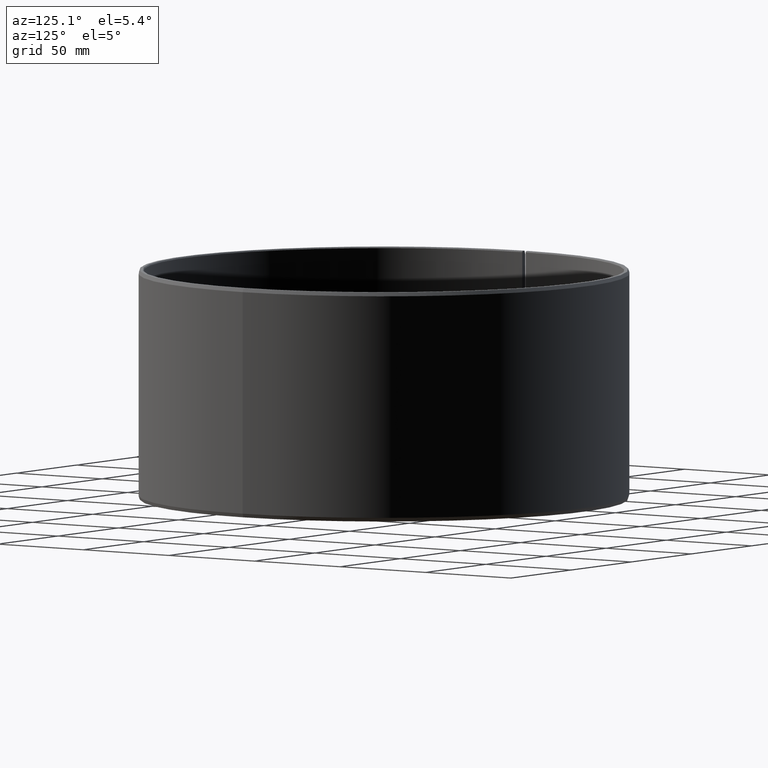
[diagram: clean part render]
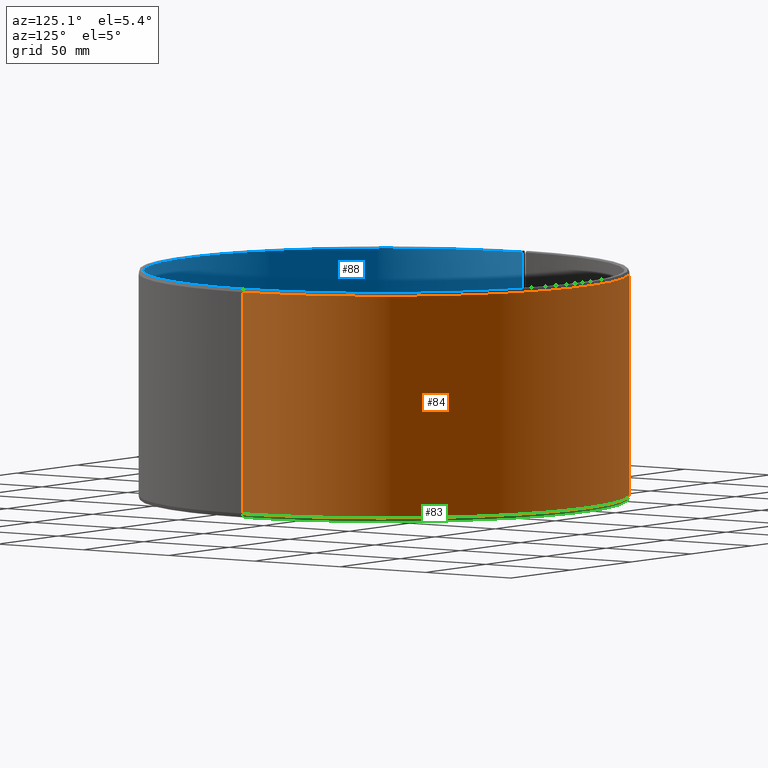
[diagram: same view with three faces highlighted in distinct colors, each labeled with its STEP entity id]
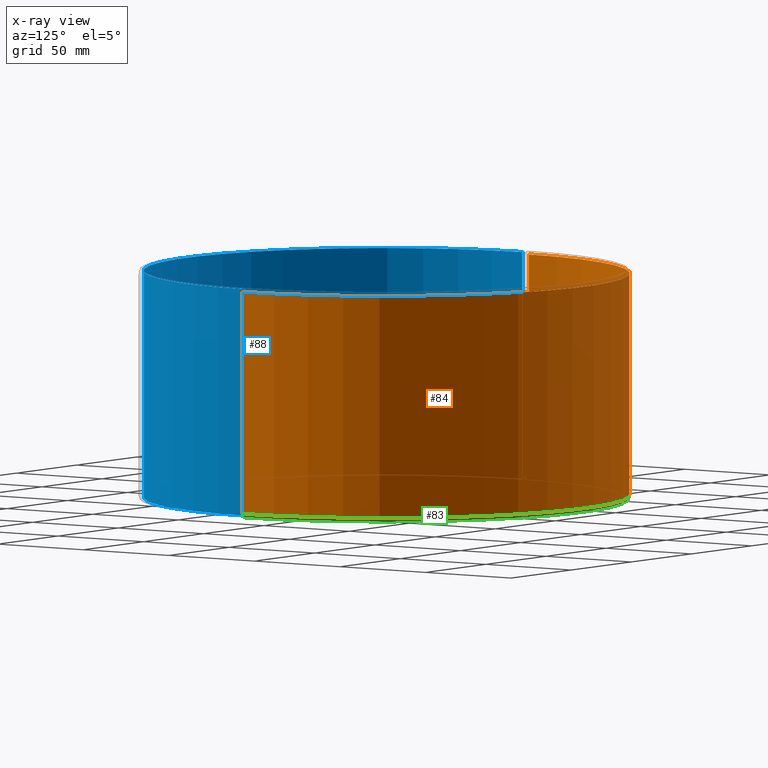
[diagram: x-ray of the same camera — body ghosted, the three highlighted faces saturated]
A machine part, auxiliary view with three faces highlighted in distinct colors.
The next image is the same camera in x-ray (body ghosted, the three faces saturated) — at least one of them is partly hidden behind the body in this view.
Their STEP definitions:

[orange] entity #84 — the highlighted cylindrical surface (partial cylindrical patch) has radius 117.5 mm, axis along (0, -0, 1).
#84=ADVANCED_FACE('',(#110),#111,.T.);
#110=FACE_OUTER_BOUND('',#142,.T.);
#111=CYLINDRICAL_SURFACE('',#143,117.5);
#142=EDGE_LOOP('',(#221,#222,#223,#224));
#143=AXIS2_PLACEMENT_3D('',#225,#226,#227);
#221=ORIENTED_EDGE('',*,*,#291,.T.);
#222=ORIENTED_EDGE('',*,*,#307,.T.);
#223=ORIENTED_EDGE('',*,*,#308,.T.);
#224=ORIENTED_EDGE('',*,*,#309,.F.);
#225=CARTESIAN_POINT('',(3.05322034464632E-014,-3.53787331373911E-014,55.0));
#226=DIRECTION('',(5.48707263966375E-016,-6.09939603923743E-016,1.0));
#227=DIRECTION('',(-1.0,1.89882151931499E-015,5.48707263966376E-016));
#291=EDGE_CURVE('',#332,#339,#340,.T.);
#307=EDGE_CURVE('',#339,#363,#365,.T.);
#308=EDGE_CURVE('',#363,#366,#367,.T.);
#309=EDGE_CURVE('',#332,#366,#368,.T.);
#332=VERTEX_POINT('',#398);
#339=VERTEX_POINT('',#407);
#340=LINE('',#408,#409);
#363=VERTEX_POINT('',#440);
#365=CIRCLE('',#443,117.5);
#366=VERTEX_POINT('',#444);
#367=LINE('',#445,#446);
#368=CIRCLE('',#447,117.5);
#398=CARTESIAN_POINT('',(117.5,-3.05328648475626E-013,108.2));
#407=CARTESIAN_POINT('',(117.5,-2.39302852111333E-013,1.79999999999993));
#408=CARTESIAN_POINT('',(117.5,-2.72879861546883E-013,54.9999999999999));
#409=VECTOR('',#485,1.0);
#440=CARTESIAN_POINT('',(-117.482104180876,2.05065775638105,1.80000000000006));
#443=AXIS2_PLACEMENT_3D('',#513,#514,#515);
#444=CARTESIAN_POINT('',(-117.482104180876,2.05065775638098,108.2));
#445=CARTESIAN_POINT('',(-117.482104180876,2.05065775638104,1.80000000000006));
#446=VECTOR('',#516,10.0);
#447=AXIS2_PLACEMENT_3D('',#517,#518,#519);
#485=DIRECTION('',(-5.48707263966375E-016,6.09939603923743E-016,-1.0));
#513=CARTESIAN_POINT('',(1.34097700345211E-015,-1.74661459587933E-015,1.8));
#514=DIRECTION('',(5.48707263966375E-016,-6.09939603923743E-016,1.0));
#515=DIRECTION('',(-1.0,1.89882151931499E-015,5.48707263966376E-016));
#516=DIRECTION('',(7.15608683843326E-016,-6.14227309958438E-016,1.0));
#517=CARTESIAN_POINT('',(5.97234298894743E-014,-6.67904056296526E-014,108.2));
#518=DIRECTION('',(5.48707263966375E-016,-6.09939603923743E-016,1.0));
#519=DIRECTION('',(-1.0,1.89882151931499E-015,5.48707263966376E-016));

[blue] entity #88 — the highlighted cylindrical surface (partial cylindrical patch) has radius 115 mm, axis along (0, -0, 1).
#88=ADVANCED_FACE('',(#118),#119,.F.);
#118=FACE_OUTER_BOUND('',#150,.T.);
#119=CYLINDRICAL_SURFACE('',#151,115.0);
#150=EDGE_LOOP('',(#251,#252,#253,#254));
#151=AXIS2_PLACEMENT_3D('',#255,#256,#257);
#251=ORIENTED_EDGE('',*,*,#280,.T.);
#252=ORIENTED_EDGE('',*,*,#302,.F.);
#253=ORIENTED_EDGE('',*,*,#317,.F.);
#254=ORIENTED_EDGE('',*,*,#315,.T.);
#255=CARTESIAN_POINT('',(3.05322034464632E-014,-3.53787331373911E-014,55.0));
#256=DIRECTION('',(5.48707263966375E-016,-6.09939603923744E-016,1.0));
#257=DIRECTION('',(-1.0,1.89882151931499E-015,5.48707263966376E-016));
#280=EDGE_CURVE('',#318,#319,#320,.T.);
#302=EDGE_CURVE('',#356,#319,#358,.T.);
#315=EDGE_CURVE('',#376,#318,#377,.T.);
#317=EDGE_CURVE('',#376,#356,#379,.T.);
#318=VERTEX_POINT('',#380);
#319=VERTEX_POINT('',#381);
#320=LINE('',#382,#383);
#356=VERTEX_POINT('',#430);
#358=CIRCLE('',#433,115.0);
#376=VERTEX_POINT('',#458);
#377=CIRCLE('',#459,115.0);
#379=LINE('',#462,#463);
#380=CARTESIAN_POINT('',(115.0,-2.99878397555843E-013,109.4));
#381=CARTESIAN_POINT('',(115.0,-2.33554448492525E-013,0.599999999999943));
#382=CARTESIAN_POINT('',(115.0,-2.67826646048809E-013,54.9999999999999));
#383=VECTOR('',#464,1.0);
#430=CARTESIAN_POINT('',(-115.0,2.16895927894757E-013,0.600000000000065));
#433=AXIS2_PLACEMENT_3D('',#504,#505,#506);
#458=CARTESIAN_POINT('',(-115.0,1.50535239427465E-013,109.4));
#459=AXIS2_PLACEMENT_3D('',#529,#530,#531);
#462=CARTESIAN_POINT('',(-115.0,1.50535239427465E-013,109.4));
#463=VECTOR('',#533,10.0);
#464=DIRECTION('',(-5.48707263966375E-016,6.09939603923743E-016,-1.0));
#504=CARTESIAN_POINT('',(6.82528286692465E-016,-1.08816587911968E-015,0.600000000000006));
#505=DIRECTION('',(5.48707263966375E-016,-6.09939603923743E-016,1.0));
#506=DIRECTION('',(-1.0,1.89882151931499E-015,5.48707263966376E-016));
#529=CARTESIAN_POINT('',(6.0381878606234E-014,-6.74488543464123E-014,109.4));
#530=DIRECTION('',(5.48707263966375E-016,-6.09939603923743E-016,1.0));
#531=DIRECTION('',(-1.0,1.89882151931499E-015,5.48707263966376E-016));
#533=DIRECTION('',(-8.75243447679656E-016,6.09932798412617E-016,-1.0));

[green] entity #83 — the highlighted conical surface has half-angle 20 deg.
#83=ADVANCED_FACE('',(#108),#109,.T.);
#108=FACE_OUTER_BOUND('',#140,.T.);
#109=CONICAL_SURFACE('',#141,117.17242678916,0.349065850398854);
#140=EDGE_LOOP('',(#214,#215,#216,#217));
#141=AXIS2_PLACEMENT_3D('',#218,#219,#220);
#214=ORIENTED_EDGE('',*,*,#294,.T.);
#215=ORIENTED_EDGE('',*,*,#304,.T.);
#216=ORIENTED_EDGE('',*,*,#306,.T.);
#217=ORIENTED_EDGE('',*,*,#307,.F.);
#218=CARTESIAN_POINT('',(8.47140465882374E-016,-1.25277805830959E-015,0.9));
#219=DIRECTION('',(5.48707263966375E-016,-6.09939603923743E-016,1.0));
#220=DIRECTION('',(-1.0,1.89882151931499E-015,5.48707263966376E-016));
#294=EDGE_CURVE('',#339,#344,#345,.T.);
#304=EDGE_CURVE('',#344,#359,#361,.T.);
#306=EDGE_CURVE('',#359,#363,#364,.T.);
#307=EDGE_CURVE('',#339,#363,#365,.T.);
#339=VERTEX_POINT('',#407);
#344=VERTEX_POINT('',#414);
#345=LINE('',#415,#416);
#359=VERTEX_POINT('',#434);
#361=CIRCLE('',#437,116.844853578321);
#363=VERTEX_POINT('',#440);
#364=LINE('',#441,#442);
#365=CIRCLE('',#443,117.5);
#407=CARTESIAN_POINT('',(117.5,-2.39302852111333E-013,1.79999999999993));
#414=CARTESIAN_POINT('',(116.844853578321,-2.36880722403656E-013,-6.26703299834996E-014));
#415=CARTESIAN_POINT('',(117.17242678916,-2.38091787257494E-013,0.899999999999936));
#416=VECTOR('',#490,1.0);
#434=CARTESIAN_POINT('',(-116.82705754117,2.03922387475397,6.66861017348343E-014));
#437=AXIS2_PLACEMENT_3D('',#508,#509,#510);
#440=CARTESIAN_POINT('',(-117.482104180876,2.05065775638105,1.80000000000006));
#441=CARTESIAN_POINT('',(-116.82705754117,2.03922387475397,6.75486717999953E-014));
#442=VECTOR('',#512,10.0);
#443=AXIS2_PLACEMENT_3D('',#513,#514,#515);
#490=DIRECTION('',(-0.342020143325658,1.26447634049495E-015,-0.939692620785912));
#508=CARTESIAN_POINT('',(3.53303928312638E-016,-7.58941520739854E-016,1.40055521273414E-015));
#509=DIRECTION('',(5.48707263966375E-016,-6.09939603923743E-016,1.0));
#510=DIRECTION('',(-1.0,1.89882151931499E-015,5.48707263966376E-016));
#512=DIRECTION('',(-0.341968052001217,0.00596907455105748,0.939692620785913));
#513=CARTESIAN_POINT('',(1.34097700345211E-015,-1.74661459587933E-015,1.8));
#514=DIRECTION('',(5.48707263966375E-016,-6.09939603923743E-016,1.0));
#515=DIRECTION('',(-1.0,1.89882151931499E-015,5.48707263966376E-016));